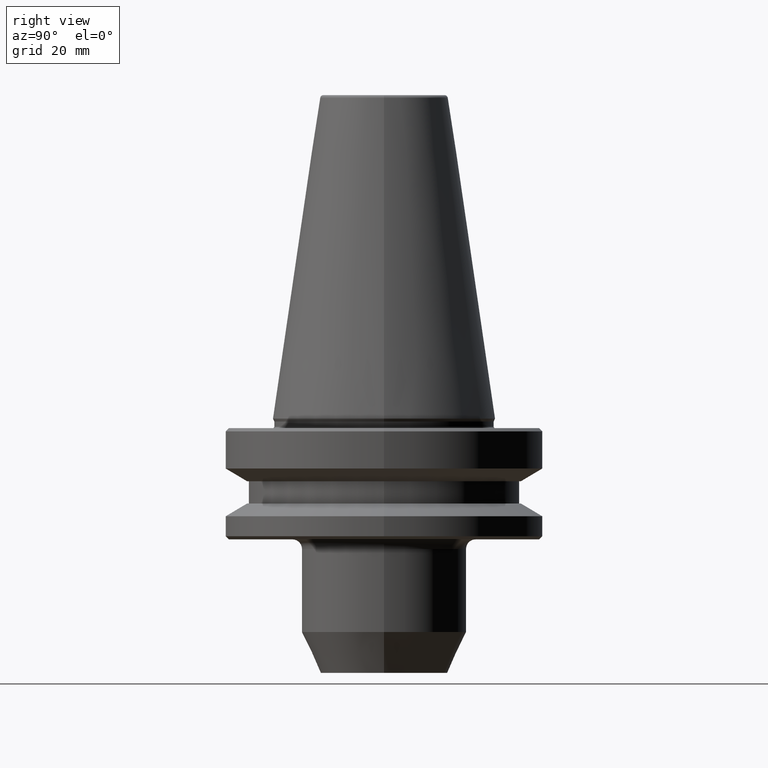
[diagram: clean part render]
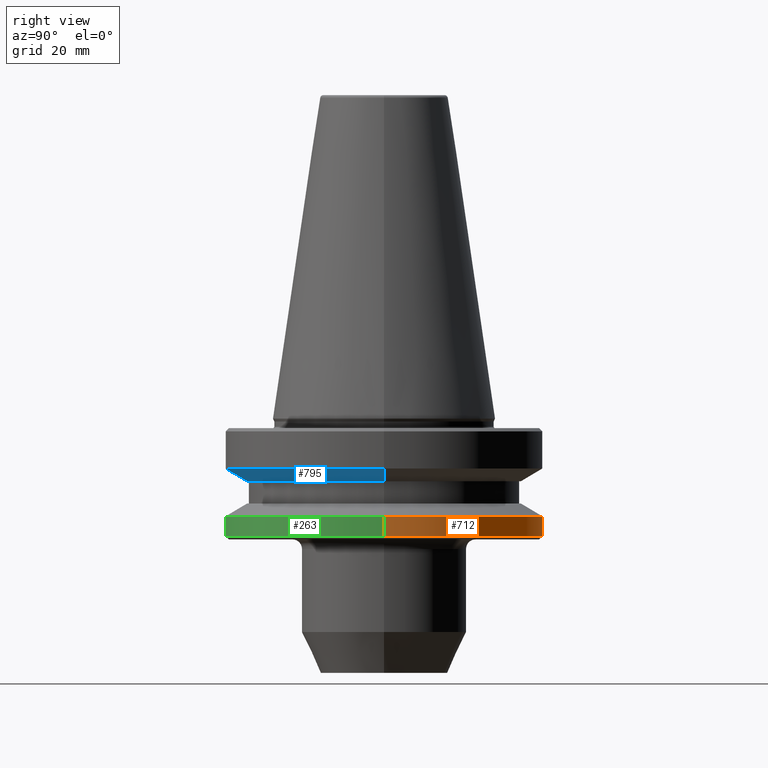
[diagram: same view with three faces highlighted in distinct colors, each labeled with its STEP entity id]
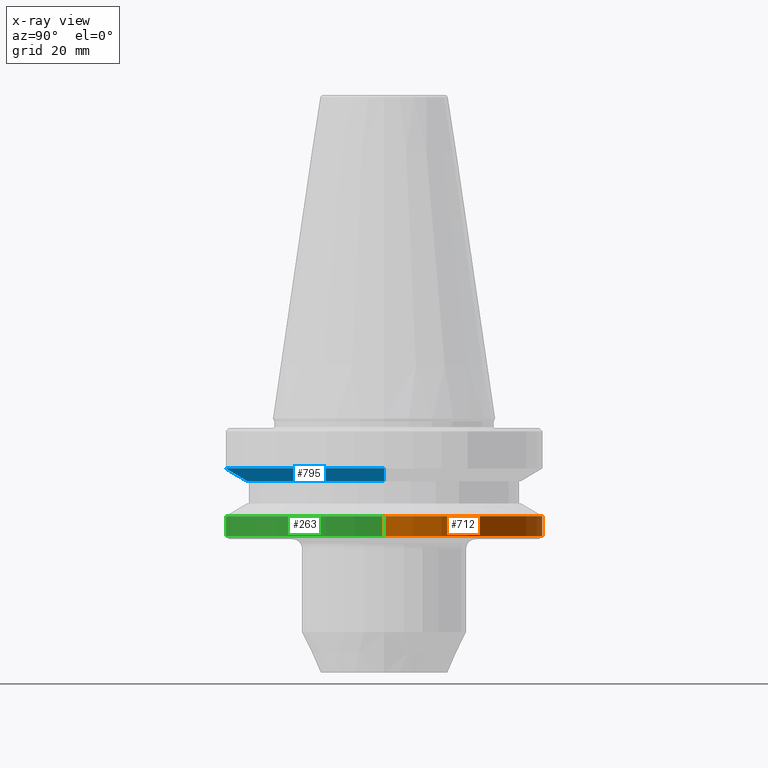
[diagram: x-ray of the same camera — body ghosted, the three highlighted faces saturated]
A machine part, right view with three faces highlighted in distinct colors.
The next image is the same camera in x-ray (body ghosted, the three faces saturated) — at least one of them is partly hidden behind the body in this view.
Their STEP definitions:

[orange] entity #712 — the highlighted cylindrical surface (partial cylindrical patch) has radius 50 mm, axis along (-0, -0, 1).
#10 = LINE ( 'NONE', #456, #797 ) ;
#22 = EDGE_CURVE ( 'NONE', #728, #57, #639, .T. ) ;
#49 = DIRECTION ( 'NONE',  ( -0.0000000000000000000, -0.0000000000000000000, 1.000000000000000000 ) ) ;
#57 = VERTEX_POINT ( 'NONE', #805 ) ;
#72 = EDGE_CURVE ( 'NONE', #532, #501, #575, .T. ) ;
#116 = CARTESIAN_POINT ( 'NONE',  ( 0.0000000000000000000, 0.0000000000000000000, -30.69977999677488300 ) ) ;
#121 = DIRECTION ( 'NONE',  ( -0.0000000000000000000, -0.0000000000000000000, 1.000000000000000000 ) ) ;
#142 = CARTESIAN_POINT ( 'NONE',  ( -49.99999999999970900, 6.123233995736729800E-015, -37.00000000000182600 ) ) ;
#216 = CARTESIAN_POINT ( 'NONE',  ( 0.0000000000000000000, 0.0000000000000000000, 105.9391094017344400 ) ) ;
#236 = AXIS2_PLACEMENT_3D ( 'NONE', #216, #769, #391 ) ;
#285 = DIRECTION ( 'NONE',  ( -0.0000000000000000000, -0.0000000000000000000, 1.000000000000000000 ) ) ;
#309 = CYLINDRICAL_SURFACE ( 'NONE', #236, 49.99999999999970900 ) ;
#338 = FACE_OUTER_BOUND ( 'NONE', #991, .T. ) ;
#352 = CARTESIAN_POINT ( 'NONE',  ( 49.99999999999970900, 0.0000000000000000000, -37.00000000000182600 ) ) ;
#359 = CARTESIAN_POINT ( 'NONE',  ( 49.99999999999970900, 0.0000000000000000000, -30.69977999677488300 ) ) ;
#391 = DIRECTION ( 'NONE',  ( 1.000000000000000000, 0.0000000000000000000, 0.0000000000000000000 ) ) ;
#414 = VECTOR ( 'NONE', #285, 1000.000000000000000 ) ;
#427 = ORIENTED_EDGE ( 'NONE', *, *, #22, .F. ) ;
#432 = ORIENTED_EDGE ( 'NONE', *, *, #854, .T. ) ;
#436 = DIRECTION ( 'NONE',  ( 1.000000000000000000, 0.0000000000000000000, 0.0000000000000000000 ) ) ;
#456 = CARTESIAN_POINT ( 'NONE',  ( -49.99999999999970900, 6.123233995736730600E-015, 105.9391094017344400 ) ) ;
#496 = CARTESIAN_POINT ( 'NONE',  ( 49.99999999999970900, 0.0000000000000000000, 105.9391094017344400 ) ) ;
#501 = VERTEX_POINT ( 'NONE', #142 ) ;
#532 = VERTEX_POINT ( 'NONE', #352 ) ;
#575 = CIRCLE ( 'NONE', #715, 49.99999999999970900 ) ;
#639 = CIRCLE ( 'NONE', #646, 49.99999999999970900 ) ;
#646 = AXIS2_PLACEMENT_3D ( 'NONE', #116, #754, #816 ) ;
#648 = ORIENTED_EDGE ( 'NONE', *, *, #72, .T. ) ;
#664 = LINE ( 'NONE', #496, #414 ) ;
#670 = ORIENTED_EDGE ( 'NONE', *, *, #826, .F. ) ;
#712 = ADVANCED_FACE ( 'NONE', ( #338 ), #309, .T. ) ;
#715 = AXIS2_PLACEMENT_3D ( 'NONE', #794, #121, #436 ) ;
#728 = VERTEX_POINT ( 'NONE', #359 ) ;
#754 = DIRECTION ( 'NONE',  ( -0.0000000000000000000, -0.0000000000000000000, 1.000000000000000000 ) ) ;
#769 = DIRECTION ( 'NONE',  ( -0.0000000000000000000, -0.0000000000000000000, 1.000000000000000000 ) ) ;
#794 = CARTESIAN_POINT ( 'NONE',  ( 0.0000000000000000000, 0.0000000000000000000, -37.00000000000182600 ) ) ;
#797 = VECTOR ( 'NONE', #49, 1000.000000000000000 ) ;
#805 = CARTESIAN_POINT ( 'NONE',  ( -49.99999999999970900, 6.123233995736730600E-015, -30.69977999677488300 ) ) ;
#816 = DIRECTION ( 'NONE',  ( 1.000000000000000000, 0.0000000000000000000, 0.0000000000000000000 ) ) ;
#826 = EDGE_CURVE ( 'NONE', #532, #728, #664, .T. ) ;
#854 = EDGE_CURVE ( 'NONE', #501, #57, #10, .T. ) ;
#991 = EDGE_LOOP ( 'NONE', ( #648, #432, #427, #670 ) ) ;

[blue] entity #795 — the highlighted conical surface has half-angle 60 deg.
#103 = LINE ( 'NONE', #553, #611 ) ;
#111 = ORIENTED_EDGE ( 'NONE', *, *, #446, .T. ) ;
#136 = EDGE_CURVE ( 'NONE', #422, #152, #729, .T. ) ;
#148 = DIRECTION ( 'NONE',  ( -0.8660254037844377100, 1.060575238724905700E-016, 0.5000000000000017800 ) ) ;
#152 = VERTEX_POINT ( 'NONE', #692 ) ;
#167 = DIRECTION ( 'NONE',  ( -0.0000000000000000000, -0.0000000000000000000, 1.000000000000000000 ) ) ;
#186 = DIRECTION ( 'NONE',  ( -0.0000000000000000000, -0.0000000000000000000, 1.000000000000000000 ) ) ;
#189 = VERTEX_POINT ( 'NONE', #518 ) ;
#228 = EDGE_LOOP ( 'NONE', ( #471, #789, #111, #371 ) ) ;
#251 = CIRCLE ( 'NONE', #325, 49.99999999999970900 ) ;
#325 = AXIS2_PLACEMENT_3D ( 'NONE', #520, #899, #659 ) ;
#335 = DIRECTION ( 'NONE',  ( 0.8660254037844377100, 0.0000000000000000000, 0.5000000000000017800 ) ) ;
#355 = CARTESIAN_POINT ( 'NONE',  ( -43.07217782649153300, 5.274820470751845900E-015, -19.70000000000073100 ) ) ;
#371 = ORIENTED_EDGE ( 'NONE', *, *, #822, .F. ) ;
#422 = VERTEX_POINT ( 'NONE', #967 ) ;
#446 = EDGE_CURVE ( 'NONE', #152, #549, #103, .T. ) ;
#471 = ORIENTED_EDGE ( 'NONE', *, *, #868, .F. ) ;
#490 = DIRECTION ( 'NONE',  ( 1.000000000000000000, 0.0000000000000000000, 0.0000000000000000000 ) ) ;
#499 = AXIS2_PLACEMENT_3D ( 'NONE', #699, #186, #490 ) ;
#518 = CARTESIAN_POINT ( 'NONE',  ( -49.99999999999970900, 6.123233995736730600E-015, -15.70022000322790500 ) ) ;
#520 = CARTESIAN_POINT ( 'NONE',  ( 0.0000000000000000000, 0.0000000000000000000, -15.70022000322790500 ) ) ;
#537 = AXIS2_PLACEMENT_3D ( 'NONE', #641, #167, #614 ) ;
#549 = VERTEX_POINT ( 'NONE', #947 ) ;
#553 = CARTESIAN_POINT ( 'NONE',  ( 43.07217782649153300, 0.0000000000000000000, -19.70000000000073100 ) ) ;
#611 = VECTOR ( 'NONE', #335, 999.9999999999998900 ) ;
#614 = DIRECTION ( 'NONE',  ( 1.000000000000000000, 0.0000000000000000000, 0.0000000000000000000 ) ) ;
#637 = CONICAL_SURFACE ( 'NONE', #537, 43.07217782649153300, 1.047197551196595600 ) ;
#641 = CARTESIAN_POINT ( 'NONE',  ( 0.0000000000000000000, 0.0000000000000000000, -19.70000000000073100 ) ) ;
#659 = DIRECTION ( 'NONE',  ( 1.000000000000000000, 0.0000000000000000000, 0.0000000000000000000 ) ) ;
#692 = CARTESIAN_POINT ( 'NONE',  ( 43.07217782649153300, 0.0000000000000000000, -19.70000000000073100 ) ) ;
#699 = CARTESIAN_POINT ( 'NONE',  ( 0.0000000000000000000, 0.0000000000000000000, -19.70000000000073100 ) ) ;
#729 = CIRCLE ( 'NONE', #499, 43.07217782649153300 ) ;
#777 = VECTOR ( 'NONE', #148, 999.9999999999998900 ) ;
#789 = ORIENTED_EDGE ( 'NONE', *, *, #136, .T. ) ;
#795 = ADVANCED_FACE ( 'NONE', ( #876 ), #637, .T. ) ;
#822 = EDGE_CURVE ( 'NONE', #189, #549, #251, .T. ) ;
#868 = EDGE_CURVE ( 'NONE', #422, #189, #984, .T. ) ;
#876 = FACE_OUTER_BOUND ( 'NONE', #228, .T. ) ;
#899 = DIRECTION ( 'NONE',  ( -0.0000000000000000000, -0.0000000000000000000, 1.000000000000000000 ) ) ;
#947 = CARTESIAN_POINT ( 'NONE',  ( 49.99999999999970900, 0.0000000000000000000, -15.70022000322790500 ) ) ;
#967 = CARTESIAN_POINT ( 'NONE',  ( -43.07217782649153300, 5.699027233244287800E-015, -19.70000000000073100 ) ) ;
#984 = LINE ( 'NONE', #355, #777 ) ;

[green] entity #263 — the highlighted cylindrical surface (partial cylindrical patch) has radius 50 mm, axis along (-0, -0, 1).
#10 = LINE ( 'NONE', #456, #797 ) ;
#33 = CARTESIAN_POINT ( 'NONE',  ( 0.0000000000000000000, 0.0000000000000000000, -30.69977999677488300 ) ) ;
#36 = AXIS2_PLACEMENT_3D ( 'NONE', #33, #269, #208 ) ;
#40 = ORIENTED_EDGE ( 'NONE', *, *, #960, .F. ) ;
#49 = DIRECTION ( 'NONE',  ( -0.0000000000000000000, -0.0000000000000000000, 1.000000000000000000 ) ) ;
#57 = VERTEX_POINT ( 'NONE', #805 ) ;
#88 = DIRECTION ( 'NONE',  ( 1.000000000000000000, 0.0000000000000000000, 0.0000000000000000000 ) ) ;
#102 = CIRCLE ( 'NONE', #627, 49.99999999999970900 ) ;
#137 = EDGE_CURVE ( 'NONE', #501, #532, #102, .T. ) ;
#142 = CARTESIAN_POINT ( 'NONE',  ( -49.99999999999970900, 6.123233995736729800E-015, -37.00000000000182600 ) ) ;
#208 = DIRECTION ( 'NONE',  ( 1.000000000000000000, 0.0000000000000000000, 0.0000000000000000000 ) ) ;
#229 = DIRECTION ( 'NONE',  ( 1.000000000000000000, 0.0000000000000000000, 0.0000000000000000000 ) ) ;
#241 = FACE_OUTER_BOUND ( 'NONE', #732, .T. ) ;
#263 = ADVANCED_FACE ( 'NONE', ( #241 ), #385, .T. ) ;
#265 = CIRCLE ( 'NONE', #36, 49.99999999999970900 ) ;
#269 = DIRECTION ( 'NONE',  ( -0.0000000000000000000, -0.0000000000000000000, 1.000000000000000000 ) ) ;
#285 = DIRECTION ( 'NONE',  ( -0.0000000000000000000, -0.0000000000000000000, 1.000000000000000000 ) ) ;
#352 = CARTESIAN_POINT ( 'NONE',  ( 49.99999999999970900, 0.0000000000000000000, -37.00000000000182600 ) ) ;
#359 = CARTESIAN_POINT ( 'NONE',  ( 49.99999999999970900, 0.0000000000000000000, -30.69977999677488300 ) ) ;
#385 = CYLINDRICAL_SURFACE ( 'NONE', #823, 49.99999999999970900 ) ;
#414 = VECTOR ( 'NONE', #285, 1000.000000000000000 ) ;
#456 = CARTESIAN_POINT ( 'NONE',  ( -49.99999999999970900, 6.123233995736730600E-015, 105.9391094017344400 ) ) ;
#466 = CARTESIAN_POINT ( 'NONE',  ( 0.0000000000000000000, 0.0000000000000000000, 105.9391094017344400 ) ) ;
#477 = DIRECTION ( 'NONE',  ( -0.0000000000000000000, -0.0000000000000000000, 1.000000000000000000 ) ) ;
#496 = CARTESIAN_POINT ( 'NONE',  ( 49.99999999999970900, 0.0000000000000000000, 105.9391094017344400 ) ) ;
#501 = VERTEX_POINT ( 'NONE', #142 ) ;
#532 = VERTEX_POINT ( 'NONE', #352 ) ;
#550 = CARTESIAN_POINT ( 'NONE',  ( 0.0000000000000000000, 0.0000000000000000000, -37.00000000000182600 ) ) ;
#616 = DIRECTION ( 'NONE',  ( -0.0000000000000000000, -0.0000000000000000000, 1.000000000000000000 ) ) ;
#627 = AXIS2_PLACEMENT_3D ( 'NONE', #550, #616, #88 ) ;
#638 = ORIENTED_EDGE ( 'NONE', *, *, #826, .T. ) ;
#664 = LINE ( 'NONE', #496, #414 ) ;
#716 = ORIENTED_EDGE ( 'NONE', *, *, #137, .T. ) ;
#728 = VERTEX_POINT ( 'NONE', #359 ) ;
#732 = EDGE_LOOP ( 'NONE', ( #971, #716, #638, #40 ) ) ;
#797 = VECTOR ( 'NONE', #49, 1000.000000000000000 ) ;
#805 = CARTESIAN_POINT ( 'NONE',  ( -49.99999999999970900, 6.123233995736730600E-015, -30.69977999677488300 ) ) ;
#823 = AXIS2_PLACEMENT_3D ( 'NONE', #466, #477, #229 ) ;
#826 = EDGE_CURVE ( 'NONE', #532, #728, #664, .T. ) ;
#854 = EDGE_CURVE ( 'NONE', #501, #57, #10, .T. ) ;
#960 = EDGE_CURVE ( 'NONE', #57, #728, #265, .T. ) ;
#971 = ORIENTED_EDGE ( 'NONE', *, *, #854, .F. ) ;